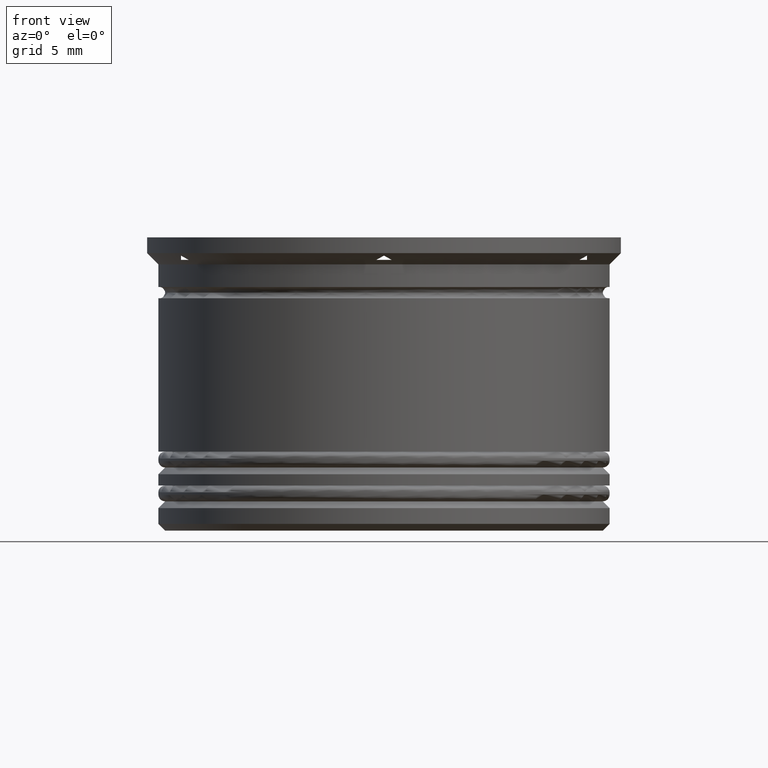
[diagram: clean part render]
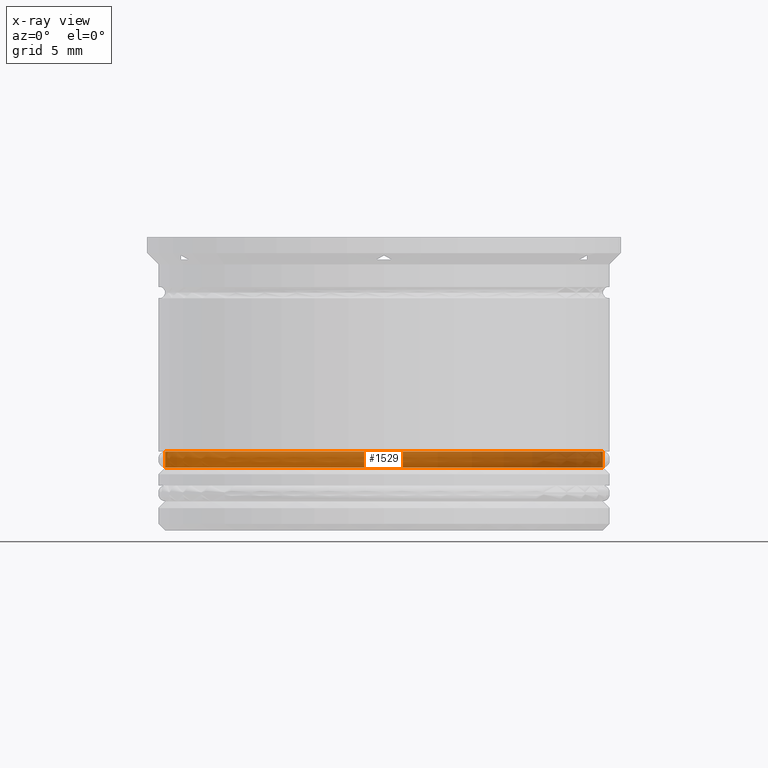
[diagram: x-ray — body ghosted, one internal face saturated and labeled with its STEP entity id]
A machine part, front view, then the same camera in x-ray: the body is ghosted and one INTERNAL B-rep face — a face not visible from any outside direction — is saturated and labeled: STEP entity #1529.
In plain terms, the highlighted cylindrical surface (partial cylindrical patch) has radius 9.7 mm, axis along (-0, -0, 1).
Its self-contained STEP definition (entity closure, byte-faithful):
#48 = EDGE_CURVE ( 'NONE', #227, #746, #1774, .T. ) ;
#82 = CYLINDRICAL_SURFACE ( 'NONE', #99, 9.700000000000001066 ) ;
#99 = AXIS2_PLACEMENT_3D ( 'NONE', #1415, #1124, #1795 ) ;
#227 = VERTEX_POINT ( 'NONE', #838 ) ;
#257 = ORIENTED_EDGE ( 'NONE', *, *, #1764, .F. ) ;
#412 = EDGE_CURVE ( 'NONE', #746, #1666, #1630, .T. ) ;
#422 = CARTESIAN_POINT ( 'NONE',  ( -9.700000000000001066, 1.187907395172932594E-15, 0.000000000000000000 ) ) ;
#424 = CARTESIAN_POINT ( 'NONE',  ( 9.700000000000001066, 0.000000000000000000, -9.500000000000001776 ) ) ;
#566 = VECTOR ( 'NONE', #1077, 1000.000000000000000 ) ;
#688 = ORIENTED_EDGE ( 'NONE', *, *, #2150, .F. ) ;
#690 = CARTESIAN_POINT ( 'NONE',  ( 0.000000000000000000, 0.000000000000000000, -9.500000000000001776 ) ) ;
#746 = VERTEX_POINT ( 'NONE', #766 ) ;
#766 = CARTESIAN_POINT ( 'NONE',  ( -9.700000000000001066, 1.187907395172932594E-15, -10.20000000000000817 ) ) ;
#821 = CARTESIAN_POINT ( 'NONE',  ( 0.000000000000000000, 0.000000000000000000, -10.20000000000000817 ) ) ;
#838 = CARTESIAN_POINT ( 'NONE',  ( 9.700000000000001066, 0.000000000000000000, -10.20000000000000817 ) ) ;
#1004 = ORIENTED_EDGE ( 'NONE', *, *, #412, .T. ) ;
#1018 = VECTOR ( 'NONE', #2113, 1000.000000000000000 ) ;
#1077 = DIRECTION ( 'NONE',  ( -0.000000000000000000, -0.000000000000000000, 1.000000000000000000 ) ) ;
#1086 = DIRECTION ( 'NONE',  ( -0.000000000000000000, -0.000000000000000000, 1.000000000000000000 ) ) ;
#1111 = ORIENTED_EDGE ( 'NONE', *, *, #48, .T. ) ;
#1124 = DIRECTION ( 'NONE',  ( -0.000000000000000000, -0.000000000000000000, 1.000000000000000000 ) ) ;
#1157 = DIRECTION ( 'NONE',  ( 1.000000000000000000, 0.000000000000000000, 0.000000000000000000 ) ) ;
#1339 = CARTESIAN_POINT ( 'NONE',  ( -9.700000000000001066, 1.187907395172932594E-15, -9.500000000000001776 ) ) ;
#1415 = CARTESIAN_POINT ( 'NONE',  ( 0.000000000000000000, 0.000000000000000000, 0.000000000000000000 ) ) ;
#1503 = DIRECTION ( 'NONE',  ( -0.000000000000000000, -0.000000000000000000, 1.000000000000000000 ) ) ;
#1529 = ADVANCED_FACE ( 'NONE', ( #1582 ), #82, .T. ) ;
#1582 = FACE_OUTER_BOUND ( 'NONE', #1728, .T. ) ;
#1630 = LINE ( 'NONE', #422, #1018 ) ;
#1666 = VERTEX_POINT ( 'NONE', #1339 ) ;
#1701 = CIRCLE ( 'NONE', #2052, 9.700000000000001066 ) ;
#1722 = LINE ( 'NONE', #1900, #566 ) ;
#1728 = EDGE_LOOP ( 'NONE', ( #1111, #1004, #688, #257 ) ) ;
#1764 = EDGE_CURVE ( 'NONE', #227, #2083, #1722, .T. ) ;
#1774 = CIRCLE ( 'NONE', #1846, 9.700000000000001066 ) ;
#1795 = DIRECTION ( 'NONE',  ( 1.000000000000000000, 0.000000000000000000, 0.000000000000000000 ) ) ;
#1846 = AXIS2_PLACEMENT_3D ( 'NONE', #821, #1086, #2115 ) ;
#1900 = CARTESIAN_POINT ( 'NONE',  ( 9.700000000000001066, 0.000000000000000000, 0.000000000000000000 ) ) ;
#2052 = AXIS2_PLACEMENT_3D ( 'NONE', #690, #1503, #1157 ) ;
#2083 = VERTEX_POINT ( 'NONE', #424 ) ;
#2113 = DIRECTION ( 'NONE',  ( -0.000000000000000000, -0.000000000000000000, 1.000000000000000000 ) ) ;
#2115 = DIRECTION ( 'NONE',  ( -1.000000000000000000, 0.000000000000000000, 0.000000000000000000 ) ) ;
#2150 = EDGE_CURVE ( 'NONE', #2083, #1666, #1701, .T. ) ;